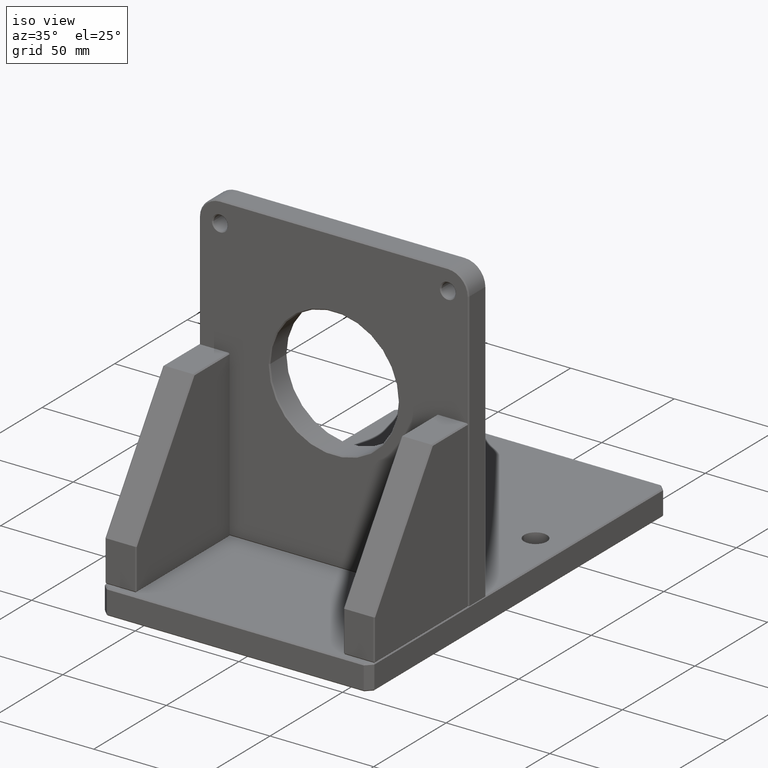
[diagram: clean part render]
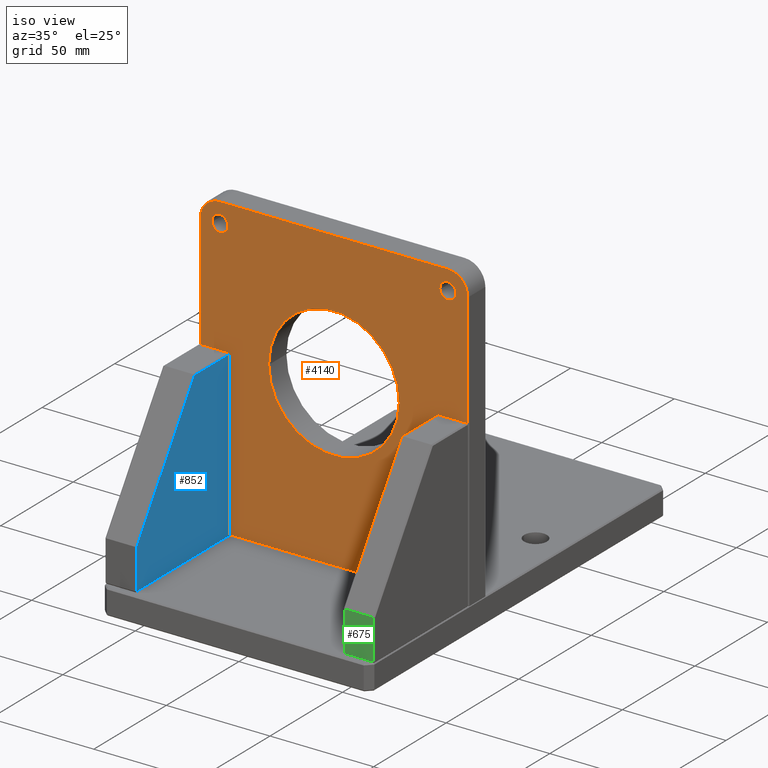
[diagram: same view with three faces highlighted in distinct colors, each labeled with its STEP entity id]
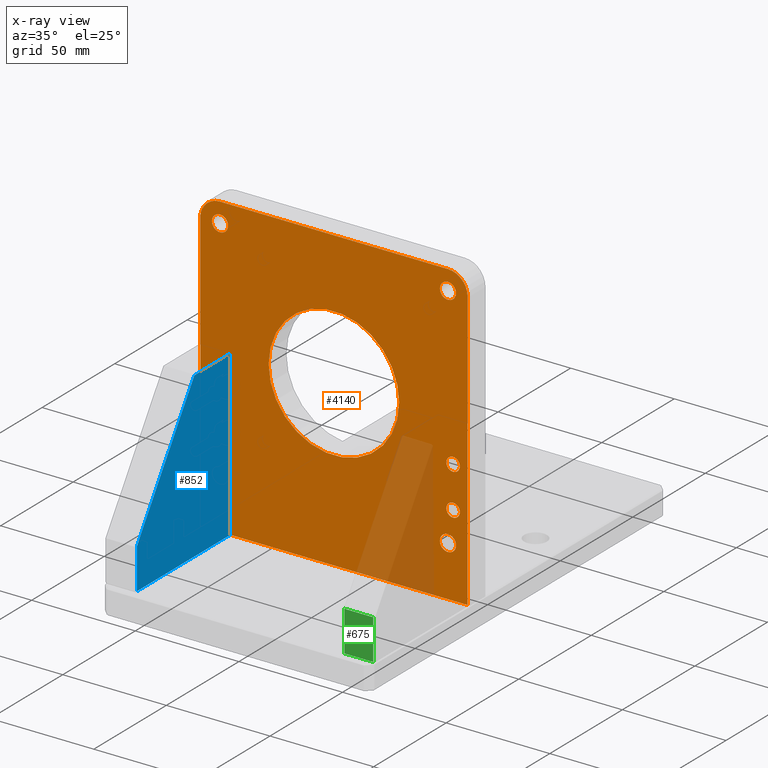
[diagram: x-ray of the same camera — body ghosted, the three highlighted faces saturated]
A machine part, iso view with three faces highlighted in distinct colors.
The next image is the same camera in x-ray (body ghosted, the three faces saturated) — at least one of them is partly hidden behind the body in this view.
Their STEP definitions:

[orange] entity #4140 — the highlighted planar face has unit normal (0, -1, 0).
#72 = CIRCLE ( 'NONE', #4725, 3.900000000000014566 ) ;
#83 = DIRECTION ( 'NONE',  ( 1.000000000000000000, 7.116814260417643269E-15, 1.423362852083528654E-14 ) ) ;
#120 = ORIENTED_EDGE ( 'NONE', *, *, #5349, .T. ) ;
#213 = EDGE_CURVE ( 'NONE', #2937, #7457, #826, .T. ) ;
#279 = CARTESIAN_POINT ( 'NONE',  ( -57.50000000000048317, -34.50000000000021316, 51.99999999999931788 ) ) ;
#292 = DIRECTION ( 'NONE',  ( 1.000000000000000000, 7.049035076985127403E-15, 1.409807015397025481E-14 ) ) ;
#321 = VERTEX_POINT ( 'NONE', #12620 ) ;
#323 = CARTESIAN_POINT ( 'NONE',  ( -31.50000000000101252, -34.49999999999989342, 91.99999999999970157 ) ) ;
#330 = DIRECTION ( 'NONE',  ( -6.982962677686217801E-15, 1.000000000000000000, -3.491481338843133355E-15 ) ) ;
#343 = DIRECTION ( 'NONE',  ( -6.982962677686217801E-15, 1.000000000000000000, -3.491481338843133355E-15 ) ) ;
#405 = CARTESIAN_POINT ( 'NONE',  ( 58.89999999999823643, -34.49999999999906919, 147.0000000000009379 ) ) ;
#411 = EDGE_CURVE ( 'NONE', #10473, #3028, #5472, .T. ) ;
#519 = VECTOR ( 'NONE', #7825, 1000.000000000000000 ) ;
#562 = CIRCLE ( 'NONE', #1835, 3.250000000000002665 ) ;
#689 = CARTESIAN_POINT ( 'NONE',  ( -57.50000000000076739, -34.50000000000014211, 71.99999999999931788 ) ) ;
#776 = CIRCLE ( 'NONE', #982, 3.250000000000002665 ) ;
#826 = CIRCLE ( 'NONE', #9495, 3.900000000000014566 ) ;
#982 = AXIS2_PLACEMENT_3D ( 'NONE', #5645, #9622, #9690 ) ;
#991 = AXIS2_PLACEMENT_3D ( 'NONE', #7611, #10601, #7167 ) ;
#1127 = EDGE_LOOP ( 'NONE', ( #5846, #6412 ) ) ;
#1293 = CARTESIAN_POINT ( 'NONE',  ( -1.040882793793194439E-12, -34.49999999999967315, 92.00000000000014211 ) ) ;
#1309 = DIRECTION ( 'NONE',  ( -6.982962677686217801E-15, 1.000000000000000000, -3.491481338843133355E-15 ) ) ;
#1477 = AXIS2_PLACEMENT_3D ( 'NONE', #1735, #2863, #12886 ) ;
#1490 = DIRECTION ( 'NONE',  ( -6.982962677686217801E-15, 1.000000000000000000, -3.491481338843133355E-15 ) ) ;
#1504 = DIRECTION ( 'NONE',  ( 6.982962677686217801E-15, -1.000000000000000000, 3.491481338843133355E-15 ) ) ;
#1587 = EDGE_CURVE ( 'NONE', #9435, #10744, #6142, .T. ) ;
#1735 = CARTESIAN_POINT ( 'NONE',  ( 57.49999999999923972, -34.49999999999933920, 72.00000000000092371 ) ) ;
#1755 = DIRECTION ( 'NONE',  ( 1.000000000000000000, 6.405132834375897717E-15, 1.494530994687709441E-14 ) ) ;
#1788 = AXIS2_PLACEMENT_3D ( 'NONE', #8419, #1309, #5357 ) ;
#1835 = AXIS2_PLACEMENT_3D ( 'NONE', #279, #343, #4134 ) ;
#1861 = DIRECTION ( 'NONE',  ( 1.000000000000000000, 6.405132834375911128E-15, 1.281026566875182226E-14 ) ) ;
#1873 = CARTESIAN_POINT ( 'NONE',  ( -9.367506770274738115E-13, -34.49999999999969447, 84.50000000000012790 ) ) ;
#2025 = CARTESIAN_POINT ( 'NONE',  ( 54.99999999999822364, -34.49999999999909051, 147.0000000000008811 ) ) ;
#2075 = CARTESIAN_POINT ( 'NONE',  ( 54.99999999999818812, -34.49999999999909051, 147.0000000000008527 ) ) ;
#2091 = EDGE_CURVE ( 'NONE', #3398, #6921, #3650, .T. ) ;
#2193 = CIRCLE ( 'NONE', #4099, 9.499999999999994671 ) ;
#2390 = ORIENTED_EDGE ( 'NONE', *, *, #5080, .T. ) ;
#2420 = VERTEX_POINT ( 'NONE', #3578 ) ;
#2466 = ORIENTED_EDGE ( 'NONE', *, *, #5466, .T. ) ;
#2503 = DIRECTION ( 'NONE',  ( 1.000000000000000000, 7.304098846218139203E-15, 1.460819769243627841E-14 ) ) ;
#2571 = DIRECTION ( 'NONE',  ( 1.000000000000000000, 6.405132834375966348E-15, 1.281026566875193270E-14 ) ) ;
#2753 = VERTEX_POINT ( 'NONE', #12699 ) ;
#2863 = DIRECTION ( 'NONE',  ( -6.982962677686217801E-15, 1.000000000000000000, -3.491481338843133355E-15 ) ) ;
#2929 = CARTESIAN_POINT ( 'NONE',  ( 57.49999999999923972, -34.49999999999933920, 72.00000000000092371 ) ) ;
#2937 = VERTEX_POINT ( 'NONE', #11036 ) ;
#2992 = VERTEX_POINT ( 'NONE', #10296 ) ;
#2997 = CARTESIAN_POINT ( 'NONE',  ( -57.50000000000076739, -34.50000000000014211, 71.99999999999931788 ) ) ;
#3028 = VERTEX_POINT ( 'NONE', #5251 ) ;
#3079 = EDGE_LOOP ( 'NONE', ( #9163, #11267 ) ) ;
#3143 = DIRECTION ( 'NONE',  ( 1.000000000000000000, 7.116814260417643269E-15, 1.423362852083528654E-14 ) ) ;
#3184 = DIRECTION ( 'NONE',  ( 1.396592535537255866E-14, -3.491481338843035537E-15, -1.000000000000000000 ) ) ;
#3398 = VERTEX_POINT ( 'NONE', #7230 ) ;
#3472 = DIRECTION ( 'NONE',  ( -6.982962677686217801E-15, 1.000000000000000000, -3.491481338843133355E-15 ) ) ;
#3481 = ORIENTED_EDGE ( 'NONE', *, *, #411, .T. ) ;
#3554 = AXIS2_PLACEMENT_3D ( 'NONE', #7668, #5675, #1755 ) ;
#3578 = CARTESIAN_POINT ( 'NONE',  ( 54.99999999999806022, -34.49999999999906208, 156.5000000000008527 ) ) ;
#3650 = LINE ( 'NONE', #9958, #519 ) ;
#3801 = DIRECTION ( 'NONE',  ( 1.000000000000000000, 7.116814260417643269E-15, 1.423362852083528654E-14 ) ) ;
#3805 = CARTESIAN_POINT ( 'NONE',  ( -51.10000000000023590, -34.50000000000022027, 36.99999999999941735 ) ) ;
#3859 = DIRECTION ( 'NONE',  ( 1.000000000000000000, 6.982962677686266711E-15, 1.396592535537253342E-14 ) ) ;
#3924 = FACE_OUTER_BOUND ( 'NONE', #4568, .T. ) ;
#3935 = LINE ( 'NONE', #7048, #8235 ) ;
#3996 = FACE_BOUND ( 'NONE', #8427, .T. ) ;
#3999 = CARTESIAN_POINT ( 'NONE',  ( -55.00000000000193268, -34.49999999999982947, 156.4999999999993747 ) ) ;
#4099 = AXIS2_PLACEMENT_3D ( 'NONE', #2075, #12090, #6123 ) ;
#4134 = DIRECTION ( 'NONE',  ( 1.000000000000000000, 6.405132834375897717E-15, 1.281026566875179543E-14 ) ) ;
#4140 = ADVANCED_FACE ( 'NONE', ( #10031, #3924, #12013, #4915, #5046, #3996, #4853, #5979, #5842, #6120 ), #6979, .T. ) ;
#4168 = AXIS2_PLACEMENT_3D ( 'NONE', #10582, #1490, #5534 ) ;
#4204 = DIRECTION ( 'NONE',  ( -6.982962677686217801E-15, 1.000000000000000000, -3.491481338843133355E-15 ) ) ;
#4347 = VERTEX_POINT ( 'NONE', #323 ) ;
#4394 = DIRECTION ( 'NONE',  ( -6.982962677686217801E-15, 1.000000000000000000, -3.491481338843133355E-15 ) ) ;
#4449 = EDGE_LOOP ( 'NONE', ( #10552, #9291 ) ) ;
#4483 = CARTESIAN_POINT ( 'NONE',  ( -55.00000000000180478, -34.49999999999986500, 146.9999999999993463 ) ) ;
#4568 = EDGE_LOOP ( 'NONE', ( #5402, #2466, #10959, #12213, #5734, #8469 ) ) ;
#4597 = CIRCLE ( 'NONE', #991, 3.250000000000002665 ) ;
#4721 = EDGE_CURVE ( 'NONE', #10182, #12545, #12202, .T. ) ;
#4725 = AXIS2_PLACEMENT_3D ( 'NONE', #12887, #10831, #3801 ) ;
#4794 = CIRCLE ( 'NONE', #4168, 31.49999999999997158 ) ;
#4853 = FACE_BOUND ( 'NONE', #12918, .T. ) ;
#4915 = FACE_BOUND ( 'NONE', #3079, .T. ) ;
#4997 = VERTEX_POINT ( 'NONE', #11063 ) ;
#5040 = CARTESIAN_POINT ( 'NONE',  ( 60.74999999999923261, -34.49999999999931788, 72.00000000000096634 ) ) ;
#5046 = FACE_BOUND ( 'NONE', #1127, .T. ) ;
#5080 = EDGE_CURVE ( 'NONE', #7457, #2937, #10443, .T. ) ;
#5157 = VECTOR ( 'NONE', #9902, 1000.000000000000000 ) ;
#5222 = EDGE_CURVE ( 'NONE', #12264, #8855, #11302, .T. ) ;
#5251 = CARTESIAN_POINT ( 'NONE',  ( 51.09999999999821085, -34.49999999999911893, 147.0000000000008242 ) ) ;
#5270 = EDGE_CURVE ( 'NONE', #2753, #12106, #72, .T. ) ;
#5323 = CARTESIAN_POINT ( 'NONE',  ( -64.49999999999992895, -34.50000000000039790, 12.49999999999922018 ) ) ;
#5349 = EDGE_CURVE ( 'NONE', #321, #4347, #6851, .T. ) ;
#5357 = DIRECTION ( 'NONE',  ( 1.000000000000000000, 7.116814260417655891E-15, 1.423362852083531178E-14 ) ) ;
#5364 = EDGE_LOOP ( 'NONE', ( #5667, #12981 ) ) ;
#5388 = CARTESIAN_POINT ( 'NONE',  ( 54.99999999999822364, -34.49999999999909051, 147.0000000000008811 ) ) ;
#5402 = ORIENTED_EDGE ( 'NONE', *, *, #2091, .T. ) ;
#5437 = AXIS2_PLACEMENT_3D ( 'NONE', #2025, #10125, #8269 ) ;
#5454 = VERTEX_POINT ( 'NONE', #3999 ) ;
#5466 = EDGE_CURVE ( 'NONE', #6921, #2420, #2193, .T. ) ;
#5467 = EDGE_CURVE ( 'NONE', #12545, #3398, #10172, .T. ) ;
#5472 = CIRCLE ( 'NONE', #7173, 3.900000000000014566 ) ;
#5478 = CARTESIAN_POINT ( 'NONE',  ( -55.00000000000024158, -34.50000000000024869, 36.99999999999936051 ) ) ;
#5490 = ORIENTED_EDGE ( 'NONE', *, *, #9251, .T. ) ;
#5534 = DIRECTION ( 'NONE',  ( 1.000000000000000000, 7.049035076985127403E-15, 1.409807015397025481E-14 ) ) ;
#5645 = CARTESIAN_POINT ( 'NONE',  ( 57.49999999999950973, -34.49999999999940314, 52.00000000000093081 ) ) ;
#5667 = ORIENTED_EDGE ( 'NONE', *, *, #8463, .T. ) ;
#5675 = DIRECTION ( 'NONE',  ( -6.982962677686217801E-15, 1.000000000000000000, -3.491481338843133355E-15 ) ) ;
#5734 = ORIENTED_EDGE ( 'NONE', *, *, #4721, .T. ) ;
#5842 = FACE_BOUND ( 'NONE', #11047, .T. ) ;
#5846 = ORIENTED_EDGE ( 'NONE', *, *, #9204, .T. ) ;
#5928 = ORIENTED_EDGE ( 'NONE', *, *, #213, .T. ) ;
#5979 = FACE_BOUND ( 'NONE', #5364, .T. ) ;
#6014 = CARTESIAN_POINT ( 'NONE',  ( 54.24999999999950973, -34.49999999999942446, 52.00000000000088818 ) ) ;
#6071 = CARTESIAN_POINT ( 'NONE',  ( 58.89999999999976410, -34.49999999999945288, 37.00000000000093792 ) ) ;
#6120 = FACE_BOUND ( 'NONE', #4449, .T. ) ;
#6123 = DIRECTION ( 'NONE',  ( 1.000000000000000000, 7.304098846218139203E-15, 1.460819769243627841E-14 ) ) ;
#6142 = CIRCLE ( 'NONE', #1477, 3.249999999999996003 ) ;
#6332 = CIRCLE ( 'NONE', #8638, 3.249999999999968026 ) ;
#6343 = CARTESIAN_POINT ( 'NONE',  ( 54.99999999999975131, -34.49999999999948130, 37.00000000000088107 ) ) ;
#6412 = ORIENTED_EDGE ( 'NONE', *, *, #5270, .T. ) ;
#6464 = CARTESIAN_POINT ( 'NONE',  ( -51.10000000000176357, -34.49999999999983658, 146.9999999999994031 ) ) ;
#6502 = AXIS2_PLACEMENT_3D ( 'NONE', #10427, #330, #3143 ) ;
#6514 = EDGE_CURVE ( 'NONE', #5454, #10182, #7117, .T. ) ;
#6561 = EDGE_LOOP ( 'NONE', ( #120, #8023 ) ) ;
#6730 = ORIENTED_EDGE ( 'NONE', *, *, #7631, .T. ) ;
#6747 = VECTOR ( 'NONE', #3184, 1000.000000000000000 ) ;
#6783 = DIRECTION ( 'NONE',  ( -6.982962677686217801E-15, 1.000000000000000000, -3.491481338843133355E-15 ) ) ;
#6820 = EDGE_CURVE ( 'NONE', #3028, #10473, #8203, .T. ) ;
#6851 = CIRCLE ( 'NONE', #11717, 31.49999999999997158 ) ;
#6921 = VERTEX_POINT ( 'NONE', #7589 ) ;
#6979 = PLANE ( 'NONE',  #11607 ) ;
#7043 = CARTESIAN_POINT ( 'NONE',  ( 65.00000000000007105, -34.49999999999949551, 12.50000000000102496 ) ) ;
#7048 = CARTESIAN_POINT ( 'NONE',  ( -55.00000000000193268, -34.49999999999982947, 156.4999999999993747 ) ) ;
#7070 = DIRECTION ( 'NONE',  ( -6.982962677686217801E-15, 1.000000000000000000, -3.491481338843133355E-15 ) ) ;
#7117 = CIRCLE ( 'NONE', #8817, 9.499999999999994671 ) ;
#7121 = CARTESIAN_POINT ( 'NONE',  ( 54.99999999999975131, -34.49999999999948130, 37.00000000000088107 ) ) ;
#7167 = DIRECTION ( 'NONE',  ( 1.000000000000000000, 6.405132834375897717E-15, 1.281026566875179543E-14 ) ) ;
#7173 = AXIS2_PLACEMENT_3D ( 'NONE', #5388, #4394, #12750 ) ;
#7230 = CARTESIAN_POINT ( 'NONE',  ( 64.50000000000007105, -34.49999999999949551, 12.50000000000102496 ) ) ;
#7448 = CARTESIAN_POINT ( 'NONE',  ( -54.25000000000047606, -34.50000000000019185, 51.99999999999936762 ) ) ;
#7457 = VERTEX_POINT ( 'NONE', #6071 ) ;
#7568 = CIRCLE ( 'NONE', #3554, 3.250000000000002665 ) ;
#7589 = CARTESIAN_POINT ( 'NONE',  ( 64.49999999999819522, -34.49999999999903366, 147.0000000000010232 ) ) ;
#7611 = CARTESIAN_POINT ( 'NONE',  ( 57.49999999999950973, -34.49999999999940314, 52.00000000000093081 ) ) ;
#7613 = ORIENTED_EDGE ( 'NONE', *, *, #9511, .T. ) ;
#7617 = VERTEX_POINT ( 'NONE', #7448 ) ;
#7631 = EDGE_CURVE ( 'NONE', #7617, #11644, #562, .T. ) ;
#7668 = CARTESIAN_POINT ( 'NONE',  ( -57.50000000000048317, -34.50000000000021316, 51.99999999999931788 ) ) ;
#7779 = EDGE_CURVE ( 'NONE', #10744, #9435, #7990, .T. ) ;
#7825 = DIRECTION ( 'NONE',  ( -1.396592535537255866E-14, 3.491481338843035537E-15, 1.000000000000000000 ) ) ;
#7831 = DIRECTION ( 'NONE',  ( -6.982962677686217801E-15, 1.000000000000000000, -3.491481338843133355E-15 ) ) ;
#7969 = DIRECTION ( 'NONE',  ( 6.982962677686217801E-15, -1.000000000000000000, 3.491481338843133355E-15 ) ) ;
#7990 = CIRCLE ( 'NONE', #9677, 3.249999999999996003 ) ;
#8023 = ORIENTED_EDGE ( 'NONE', *, *, #8968, .T. ) ;
#8156 = CARTESIAN_POINT ( 'NONE',  ( -64.49999999999991473, -34.50000000000039790, 11.99999999999922018 ) ) ;
#8203 = CIRCLE ( 'NONE', #5437, 3.900000000000014566 ) ;
#8235 = VECTOR ( 'NONE', #11101, 1000.000000000000000 ) ;
#8269 = DIRECTION ( 'NONE',  ( 1.000000000000000000, 7.116814260417643269E-15, 1.423362852083528654E-14 ) ) ;
#8414 = AXIS2_PLACEMENT_3D ( 'NONE', #2997, #7831, #9962 ) ;
#8419 = CARTESIAN_POINT ( 'NONE',  ( -55.00000000000024158, -34.50000000000024869, 36.99999999999936051 ) ) ;
#8427 = EDGE_LOOP ( 'NONE', ( #3481, #9744 ) ) ;
#8463 = EDGE_CURVE ( 'NONE', #10882, #4997, #6332, .T. ) ;
#8469 = ORIENTED_EDGE ( 'NONE', *, *, #5467, .T. ) ;
#8547 = EDGE_CURVE ( 'NONE', #11644, #7617, #7568, .T. ) ;
#8587 = CARTESIAN_POINT ( 'NONE',  ( -58.90000000000024727, -34.50000000000027001, 36.99999999999930367 ) ) ;
#8638 = AXIS2_PLACEMENT_3D ( 'NONE', #689, #9654, #2571 ) ;
#8660 = CARTESIAN_POINT ( 'NONE',  ( -64.50000000000179057, -34.49999999999992895, 146.9999999999991758 ) ) ;
#8817 = AXIS2_PLACEMENT_3D ( 'NONE', #4483, #1504, #2503 ) ;
#8855 = VERTEX_POINT ( 'NONE', #3805 ) ;
#8968 = EDGE_CURVE ( 'NONE', #4347, #321, #4794, .T. ) ;
#9092 = CARTESIAN_POINT ( 'NONE',  ( 54.24999999999924682, -34.49999999999936051, 72.00000000000088107 ) ) ;
#9135 = CARTESIAN_POINT ( 'NONE',  ( -54.25000000000079581, -34.50000000000012079, 71.99999999999936051 ) ) ;
#9163 = ORIENTED_EDGE ( 'NONE', *, *, #12757, .T. ) ;
#9204 = EDGE_CURVE ( 'NONE', #12106, #2753, #12855, .T. ) ;
#9251 = EDGE_CURVE ( 'NONE', #10852, #2992, #776, .T. ) ;
#9291 = ORIENTED_EDGE ( 'NONE', *, *, #1587, .T. ) ;
#9372 = EDGE_CURVE ( 'NONE', #4997, #10882, #12433, .T. ) ;
#9435 = VERTEX_POINT ( 'NONE', #9092 ) ;
#9495 = AXIS2_PLACEMENT_3D ( 'NONE', #7121, #4204, #83 ) ;
#9511 = EDGE_CURVE ( 'NONE', #2992, #10852, #4597, .T. ) ;
#9622 = DIRECTION ( 'NONE',  ( -6.982962677686217801E-15, 1.000000000000000000, -3.491481338843133355E-15 ) ) ;
#9654 = DIRECTION ( 'NONE',  ( -6.982962677686217801E-15, 1.000000000000000000, -3.491481338843133355E-15 ) ) ;
#9677 = AXIS2_PLACEMENT_3D ( 'NONE', #2929, #3472, #1861 ) ;
#9690 = DIRECTION ( 'NONE',  ( 1.000000000000000000, 6.405132834375897717E-15, 1.494530994687709441E-14 ) ) ;
#9713 = ORIENTED_EDGE ( 'NONE', *, *, #8547, .T. ) ;
#9744 = ORIENTED_EDGE ( 'NONE', *, *, #6820, .T. ) ;
#9762 = DIRECTION ( 'NONE',  ( -6.982962677686217801E-15, 1.000000000000000000, -3.491481338843133355E-15 ) ) ;
#9839 = CIRCLE ( 'NONE', #1788, 3.900000000000007461 ) ;
#9902 = DIRECTION ( 'NONE',  ( 1.000000000000000000, 6.982962677686266711E-15, 1.396592535537253342E-14 ) ) ;
#9958 = CARTESIAN_POINT ( 'NONE',  ( 64.49999999999819522, -34.49999999999903366, 147.0000000000010232 ) ) ;
#9962 = DIRECTION ( 'NONE',  ( 1.000000000000000000, 6.405132834375966348E-15, 1.708035422500257482E-14 ) ) ;
#10031 = FACE_BOUND ( 'NONE', #6561, .T. ) ;
#10125 = DIRECTION ( 'NONE',  ( -6.982962677686217801E-15, 1.000000000000000000, -3.491481338843133355E-15 ) ) ;
#10172 = LINE ( 'NONE', #7043, #5157 ) ;
#10182 = VERTEX_POINT ( 'NONE', #8660 ) ;
#10257 = DIRECTION ( 'NONE',  ( 1.000000000000000000, 7.116814260417643269E-15, 1.423362852083528654E-14 ) ) ;
#10296 = CARTESIAN_POINT ( 'NONE',  ( 60.74999999999950973, -34.49999999999938183, 52.00000000000097344 ) ) ;
#10322 = EDGE_CURVE ( 'NONE', #2420, #5454, #3935, .T. ) ;
#10427 = CARTESIAN_POINT ( 'NONE',  ( -55.00000000000177636, -34.49999999999986500, 146.9999999999993463 ) ) ;
#10443 = CIRCLE ( 'NONE', #11488, 3.900000000000014566 ) ;
#10473 = VERTEX_POINT ( 'NONE', #405 ) ;
#10552 = ORIENTED_EDGE ( 'NONE', *, *, #7779, .T. ) ;
#10582 = CARTESIAN_POINT ( 'NONE',  ( -1.040882793793194439E-12, -34.49999999999967315, 92.00000000000014211 ) ) ;
#10601 = DIRECTION ( 'NONE',  ( -6.982962677686217801E-15, 1.000000000000000000, -3.491481338843133355E-15 ) ) ;
#10744 = VERTEX_POINT ( 'NONE', #5040 ) ;
#10766 = DIRECTION ( 'NONE',  ( 1.000000000000000000, 7.116814260417655891E-15, 1.423362852083531178E-14 ) ) ;
#10831 = DIRECTION ( 'NONE',  ( -6.982962677686217801E-15, 1.000000000000000000, -3.491481338843133355E-15 ) ) ;
#10852 = VERTEX_POINT ( 'NONE', #6014 ) ;
#10882 = VERTEX_POINT ( 'NONE', #9135 ) ;
#10959 = ORIENTED_EDGE ( 'NONE', *, *, #10322, .T. ) ;
#11036 = CARTESIAN_POINT ( 'NONE',  ( 51.09999999999973852, -34.49999999999950973, 37.00000000000082423 ) ) ;
#11047 = EDGE_LOOP ( 'NONE', ( #7613, #5490 ) ) ;
#11063 = CARTESIAN_POINT ( 'NONE',  ( -60.75000000000073186, -34.50000000000016342, 71.99999999999927525 ) ) ;
#11101 = DIRECTION ( 'NONE',  ( -1.000000000000000000, -6.982962677686266711E-15, -1.396592535537253342E-14 ) ) ;
#11267 = ORIENTED_EDGE ( 'NONE', *, *, #5222, .T. ) ;
#11302 = CIRCLE ( 'NONE', #12997, 3.900000000000007461 ) ;
#11488 = AXIS2_PLACEMENT_3D ( 'NONE', #6343, #7070, #10257 ) ;
#11607 = AXIS2_PLACEMENT_3D ( 'NONE', #1873, #7969, #3859 ) ;
#11644 = VERTEX_POINT ( 'NONE', #12449 ) ;
#11717 = AXIS2_PLACEMENT_3D ( 'NONE', #1293, #6783, #292 ) ;
#11798 = EDGE_LOOP ( 'NONE', ( #2390, #5928 ) ) ;
#12013 = FACE_BOUND ( 'NONE', #11798, .T. ) ;
#12090 = DIRECTION ( 'NONE',  ( 6.982962677686217801E-15, -1.000000000000000000, 3.491481338843133355E-15 ) ) ;
#12106 = VERTEX_POINT ( 'NONE', #6464 ) ;
#12202 = LINE ( 'NONE', #8156, #6747 ) ;
#12213 = ORIENTED_EDGE ( 'NONE', *, *, #6514, .T. ) ;
#12264 = VERTEX_POINT ( 'NONE', #8587 ) ;
#12433 = CIRCLE ( 'NONE', #8414, 3.249999999999968026 ) ;
#12449 = CARTESIAN_POINT ( 'NONE',  ( -60.75000000000048317, -34.50000000000023448, 51.99999999999927525 ) ) ;
#12545 = VERTEX_POINT ( 'NONE', #5323 ) ;
#12620 = CARTESIAN_POINT ( 'NONE',  ( 31.49999999999893063, -34.49999999999944578, 92.00000000000058265 ) ) ;
#12699 = CARTESIAN_POINT ( 'NONE',  ( -58.90000000000178915, -34.49999999999989342, 146.9999999999992895 ) ) ;
#12750 = DIRECTION ( 'NONE',  ( 1.000000000000000000, 7.116814260417643269E-15, 1.423362852083528654E-14 ) ) ;
#12757 = EDGE_CURVE ( 'NONE', #8855, #12264, #9839, .T. ) ;
#12855 = CIRCLE ( 'NONE', #6502, 3.900000000000014566 ) ;
#12886 = DIRECTION ( 'NONE',  ( 1.000000000000000000, 6.405132834375911128E-15, 1.708035422500242967E-14 ) ) ;
#12887 = CARTESIAN_POINT ( 'NONE',  ( -55.00000000000177636, -34.49999999999986500, 146.9999999999993463 ) ) ;
#12918 = EDGE_LOOP ( 'NONE', ( #6730, #9713 ) ) ;
#12981 = ORIENTED_EDGE ( 'NONE', *, *, #9372, .T. ) ;
#12997 = AXIS2_PLACEMENT_3D ( 'NONE', #5478, #9762, #10766 ) ;

[blue] entity #852 — the highlighted planar face has unit normal (1, 0, -0).
#381 = VECTOR ( 'NONE', #8957, 1000.000000000000000 ) ;
#852 = ADVANCED_FACE ( 'NONE', ( #7804 ), #11844, .T. ) ;
#1424 = VECTOR ( 'NONE', #3854, 1000.000000000000000 ) ;
#1661 = CARTESIAN_POINT ( 'NONE',  ( -49.99999999999847944, -99.00000000000075318, 12.50000000000051337 ) ) ;
#1841 = VERTEX_POINT ( 'NONE', #3323 ) ;
#2491 = CARTESIAN_POINT ( 'NONE',  ( -49.99999999999848654, -99.00000000000075318, 12.00000000000052758 ) ) ;
#2885 = VECTOR ( 'NONE', #11725, 1000.000000000000000 ) ;
#2974 = CARTESIAN_POINT ( 'NONE',  ( -49.99999999999938183, -34.50000000000073186, 12.00000000000050626 ) ) ;
#3182 = EDGE_CURVE ( 'NONE', #5775, #10571, #12872, .T. ) ;
#3323 = CARTESIAN_POINT ( 'NONE',  ( -49.99999999999820233, -59.23240812075673034, 91.50000000000051159 ) ) ;
#3669 = DIRECTION ( 'NONE',  ( -1.047444401652940007E-14, 0.0000000000000000000, -1.000000000000000000 ) ) ;
#3854 = DIRECTION ( 'NONE',  ( 1.396592535537253342E-14, -1.000000000000000000, -1.462853032738780738E-28 ) ) ;
#3919 = VERTEX_POINT ( 'NONE', #7924 ) ;
#3937 = VERTEX_POINT ( 'NONE', #6933 ) ;
#4025 = ORIENTED_EDGE ( 'NONE', *, *, #9429, .T. ) ;
#4067 = ORIENTED_EDGE ( 'NONE', *, *, #3182, .T. ) ;
#4543 = LINE ( 'NONE', #5408, #6691 ) ;
#4605 = EDGE_LOOP ( 'NONE', ( #4025, #4930, #6821, #4067, #6428 ) ) ;
#4813 = DIRECTION ( 'NONE',  ( 1.000000000000000000, 1.396592535537253342E-14, -1.047444401652940007E-14 ) ) ;
#4930 = ORIENTED_EDGE ( 'NONE', *, *, #6448, .T. ) ;
#5408 = CARTESIAN_POINT ( 'NONE',  ( -49.99999999999827338, -99.08397485283180117, 31.72264990188790890 ) ) ;
#5775 = VERTEX_POINT ( 'NONE', #1661 ) ;
#5951 = DIRECTION ( 'NONE',  ( -1.047444401652940007E-14, 0.0000000000000000000, -1.000000000000000000 ) ) ;
#6108 = CARTESIAN_POINT ( 'NONE',  ( -49.99999999999820233, -59.50000000000073186, 91.50000000000051159 ) ) ;
#6222 = VECTOR ( 'NONE', #3669, 1000.000000000000000 ) ;
#6428 = ORIENTED_EDGE ( 'NONE', *, *, #11451, .T. ) ;
#6448 = EDGE_CURVE ( 'NONE', #1841, #3919, #4543, .T. ) ;
#6691 = VECTOR ( 'NONE', #9651, 1000.000000000000114 ) ;
#6821 = ORIENTED_EDGE ( 'NONE', *, *, #12292, .T. ) ;
#6933 = CARTESIAN_POINT ( 'NONE',  ( -49.99999999999854339, -35.00000000000071765, 91.50000000000051159 ) ) ;
#7804 = FACE_OUTER_BOUND ( 'NONE', #4605, .T. ) ;
#7924 = CARTESIAN_POINT ( 'NONE',  ( -49.99999999999827338, -99.00000000000075318, 31.84861218113449510 ) ) ;
#7958 = CARTESIAN_POINT ( 'NONE',  ( -49.99999999999937472, -34.50000000000073186, 12.50000000000049383 ) ) ;
#8957 = DIRECTION ( 'NONE',  ( -1.396592535537253658E-14, 1.000000000000000000, -3.311995080573716721E-16 ) ) ;
#8959 = LINE ( 'NONE', #6108, #1424 ) ;
#9429 = EDGE_CURVE ( 'NONE', #3937, #1841, #8959, .T. ) ;
#9651 = DIRECTION ( 'NONE',  ( -9.683626918865031992E-16, -0.5547001962252291474, -0.8320502943378436100 ) ) ;
#9673 = LINE ( 'NONE', #11790, #2885 ) ;
#9927 = AXIS2_PLACEMENT_3D ( 'NONE', #2974, #4813, #5951 ) ;
#10571 = VERTEX_POINT ( 'NONE', #10823 ) ;
#10823 = CARTESIAN_POINT ( 'NONE',  ( -49.99999999999937472, -35.00000000000071765, 12.50000000000049383 ) ) ;
#11451 = EDGE_CURVE ( 'NONE', #10571, #3937, #9673, .T. ) ;
#11725 = DIRECTION ( 'NONE',  ( 1.047444401652940007E-14, 0.0000000000000000000, 1.000000000000000000 ) ) ;
#11790 = CARTESIAN_POINT ( 'NONE',  ( -49.99999999999853628, -35.00000000000071765, 92.00000000000051159 ) ) ;
#11844 = PLANE ( 'NONE',  #9927 ) ;
#12292 = EDGE_CURVE ( 'NONE', #3919, #5775, #12760, .T. ) ;
#12760 = LINE ( 'NONE', #2491, #6222 ) ;
#12872 = LINE ( 'NONE', #7958, #381 ) ;

[green] entity #675 — the highlighted planar face has unit normal (-0, 1, 0).
#36 = EDGE_CURVE ( 'NONE', #6506, #9731, #9986, .T. ) ;
#322 = FACE_OUTER_BOUND ( 'NONE', #9424, .T. ) ;
#632 = CARTESIAN_POINT ( 'NONE',  ( 50.50000000000151346, -99.49999999999931788, 12.49999999999947775 ) ) ;
#675 = ADVANCED_FACE ( 'NONE', ( #322 ), #3393, .F. ) ;
#1518 = LINE ( 'NONE', #5560, #5307 ) ;
#1955 = CARTESIAN_POINT ( 'NONE',  ( 50.50000000000171951, -99.49999999999931788, 31.99999999999948130 ) ) ;
#3393 = PLANE ( 'NONE',  #12901 ) ;
#3400 = VECTOR ( 'NONE', #12730, 1000.000000000000000 ) ;
#3515 = DIRECTION ( 'NONE',  ( -1.000000000000000000, -1.396592535537253342E-14, 1.047444401652940007E-14 ) ) ;
#3563 = CARTESIAN_POINT ( 'NONE',  ( 50.50000000000171951, -99.49999999999931788, 31.99999999999948130 ) ) ;
#3639 = CARTESIAN_POINT ( 'NONE',  ( 64.50000000000173372, -99.49999999999911893, 31.99999999999933564 ) ) ;
#4190 = ORIENTED_EDGE ( 'NONE', *, *, #12896, .F. ) ;
#4757 = CARTESIAN_POINT ( 'NONE',  ( 64.50000000000153477, -99.49999999999911893, 12.49999999999933031 ) ) ;
#4993 = ORIENTED_EDGE ( 'NONE', *, *, #36, .T. ) ;
#5307 = VECTOR ( 'NONE', #7742, 1000.000000000000000 ) ;
#5406 = VECTOR ( 'NONE', #8083, 1000.000000000000000 ) ;
#5560 = CARTESIAN_POINT ( 'NONE',  ( 50.00000000000173372, -99.49999999999931788, 31.99999999999948130 ) ) ;
#6506 = VERTEX_POINT ( 'NONE', #3563 ) ;
#7174 = CARTESIAN_POINT ( 'NONE',  ( 50.00000000000152767, -99.49999999999931788, 12.49999999999948308 ) ) ;
#7293 = LINE ( 'NONE', #7174, #5406 ) ;
#7742 = DIRECTION ( 'NONE',  ( 1.000000000000000000, 1.396592535537253342E-14, -1.047444401652940007E-14 ) ) ;
#8083 = DIRECTION ( 'NONE',  ( 1.000000000000000000, 1.396592535537253342E-14, -1.047444401652940007E-14 ) ) ;
#8210 = CARTESIAN_POINT ( 'NONE',  ( 64.50000000000173372, -99.49999999999911893, 31.99999999999933564 ) ) ;
#9424 = EDGE_LOOP ( 'NONE', ( #12681, #10015, #4190, #4993 ) ) ;
#9731 = VERTEX_POINT ( 'NONE', #632 ) ;
#9986 = LINE ( 'NONE', #1955, #12082 ) ;
#10015 = ORIENTED_EDGE ( 'NONE', *, *, #12933, .T. ) ;
#10480 = DIRECTION ( 'NONE',  ( -1.396592535537253342E-14, 1.000000000000000000, 1.462853032738780738E-28 ) ) ;
#10731 = LINE ( 'NONE', #3639, #3400 ) ;
#10829 = EDGE_CURVE ( 'NONE', #9731, #11400, #7293, .T. ) ;
#10907 = VERTEX_POINT ( 'NONE', #8210 ) ;
#11400 = VERTEX_POINT ( 'NONE', #4757 ) ;
#11535 = CARTESIAN_POINT ( 'NONE',  ( 50.00000000000173372, -99.49999999999931788, 31.99999999999948130 ) ) ;
#11829 = DIRECTION ( 'NONE',  ( -1.047444401652940007E-14, 0.0000000000000000000, -1.000000000000000000 ) ) ;
#12082 = VECTOR ( 'NONE', #11829, 1000.000000000000000 ) ;
#12681 = ORIENTED_EDGE ( 'NONE', *, *, #10829, .T. ) ;
#12730 = DIRECTION ( 'NONE',  ( 1.047444401652940007E-14, 0.0000000000000000000, 1.000000000000000000 ) ) ;
#12896 = EDGE_CURVE ( 'NONE', #6506, #10907, #1518, .T. ) ;
#12901 = AXIS2_PLACEMENT_3D ( 'NONE', #11535, #10480, #3515 ) ;
#12933 = EDGE_CURVE ( 'NONE', #11400, #10907, #10731, .T. ) ;